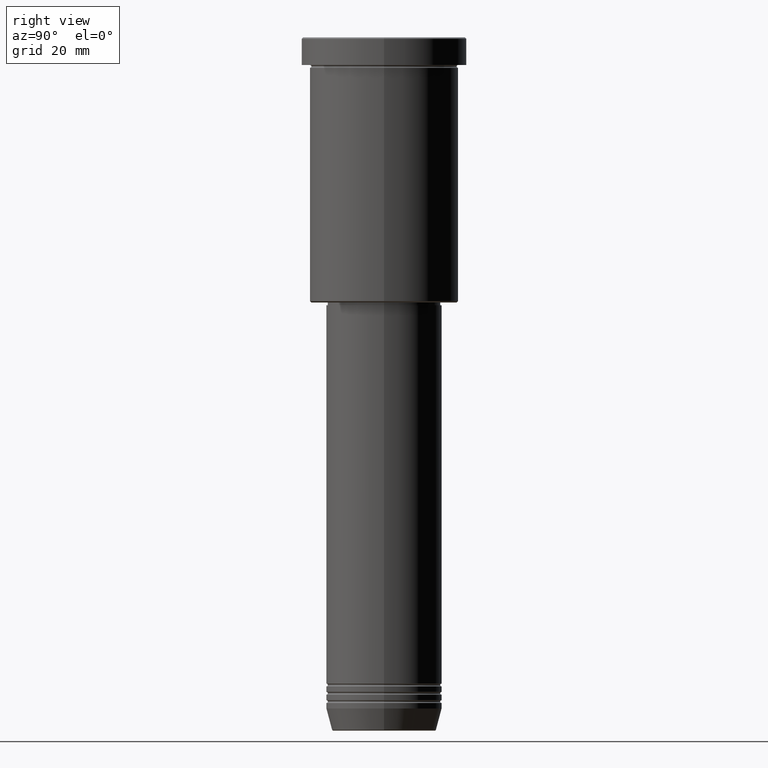
[diagram: clean part render]
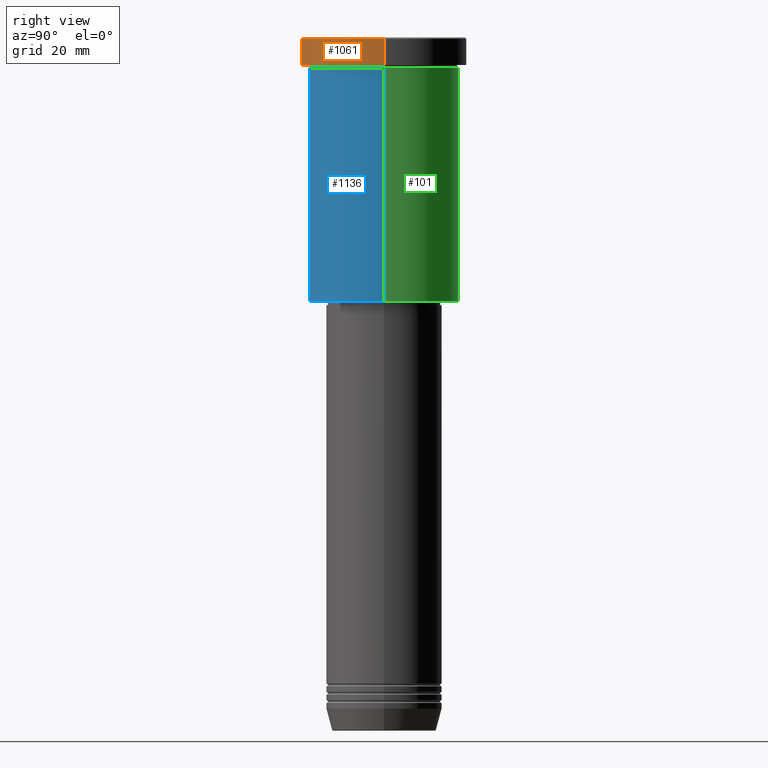
[diagram: same view with three faces highlighted in distinct colors, each labeled with its STEP entity id]
A machine part, right view with three faces highlighted in distinct colors.
Their STEP definitions:

[orange] entity #1061 — the highlighted cylindrical surface (partial cylindrical patch) has radius 30 mm, axis along (-0, -0, 1).
#10 = ORIENTED_EDGE ( 'NONE', *, *, #1024, .T. ) ;
#15 = DIRECTION ( 'NONE',  ( 1.000000000000000000, 0.000000000000000000, 0.000000000000000000 ) ) ;
#31 = AXIS2_PLACEMENT_3D ( 'NONE', #519, #958, #231 ) ;
#56 = CARTESIAN_POINT ( 'NONE',  ( -30.00000000000000000, 3.673940397442059178E-15, -9.999999999999992895 ) ) ;
#82 = CARTESIAN_POINT ( 'NONE',  ( 0.000000000000000000, 0.000000000000000000, -0.5000000000000073275 ) ) ;
#96 = DIRECTION ( 'NONE',  ( 1.000000000000000000, 0.000000000000000000, 0.000000000000000000 ) ) ;
#99 = DIRECTION ( 'NONE',  ( -0.000000000000000000, -0.000000000000000000, 1.000000000000000000 ) ) ;
#170 = LINE ( 'NONE', #255, #632 ) ;
#221 = AXIS2_PLACEMENT_3D ( 'NONE', #82, #934, #15 ) ;
#231 = DIRECTION ( 'NONE',  ( 1.000000000000000000, 0.000000000000000000, 0.000000000000000000 ) ) ;
#237 = VERTEX_POINT ( 'NONE', #1075 ) ;
#255 = CARTESIAN_POINT ( 'NONE',  ( 30.00000000000000000, 0.000000000000000000, 0.000000000000000000 ) ) ;
#261 = DIRECTION ( 'NONE',  ( -0.000000000000000000, -0.000000000000000000, 1.000000000000000000 ) ) ;
#298 = ORIENTED_EDGE ( 'NONE', *, *, #1177, .F. ) ;
#303 = CIRCLE ( 'NONE', #31, 30.00000000000000000 ) ;
#347 = AXIS2_PLACEMENT_3D ( 'NONE', #1095, #99, #96 ) ;
#396 = LINE ( 'NONE', #682, #977 ) ;
#504 = DIRECTION ( 'NONE',  ( -0.000000000000000000, -0.000000000000000000, 1.000000000000000000 ) ) ;
#519 = CARTESIAN_POINT ( 'NONE',  ( 0.000000000000000000, 0.000000000000000000, -9.999999999999992895 ) ) ;
#545 = EDGE_CURVE ( 'NONE', #771, #237, #170, .T. ) ;
#549 = ORIENTED_EDGE ( 'NONE', *, *, #545, .T. ) ;
#632 = VECTOR ( 'NONE', #261, 1000.000000000000000 ) ;
#682 = CARTESIAN_POINT ( 'NONE',  ( -30.00000000000000000, 3.673940397442059178E-15, 0.000000000000000000 ) ) ;
#720 = ORIENTED_EDGE ( 'NONE', *, *, #810, .T. ) ;
#771 = VERTEX_POINT ( 'NONE', #1134 ) ;
#780 = VERTEX_POINT ( 'NONE', #56 ) ;
#810 = EDGE_CURVE ( 'NONE', #780, #771, #303, .T. ) ;
#847 = CARTESIAN_POINT ( 'NONE',  ( -30.00000000000000000, 3.673940397442059178E-15, -0.5000000000000073275 ) ) ;
#934 = DIRECTION ( 'NONE',  ( 0.000000000000000000, 0.000000000000000000, -1.000000000000000000 ) ) ;
#958 = DIRECTION ( 'NONE',  ( -0.000000000000000000, -0.000000000000000000, 1.000000000000000000 ) ) ;
#977 = VECTOR ( 'NONE', #504, 1000.000000000000000 ) ;
#992 = CIRCLE ( 'NONE', #221, 30.00000000000000000 ) ;
#1024 = EDGE_CURVE ( 'NONE', #237, #1050, #992, .T. ) ;
#1050 = VERTEX_POINT ( 'NONE', #847 ) ;
#1058 = EDGE_LOOP ( 'NONE', ( #298, #720, #549, #10 ) ) ;
#1061 = ADVANCED_FACE ( 'NONE', ( #1113 ), #1105, .T. ) ;
#1075 = CARTESIAN_POINT ( 'NONE',  ( 30.00000000000000000, 0.000000000000000000, -0.5000000000000073275 ) ) ;
#1095 = CARTESIAN_POINT ( 'NONE',  ( 0.000000000000000000, 0.000000000000000000, 0.000000000000000000 ) ) ;
#1105 = CYLINDRICAL_SURFACE ( 'NONE', #347, 30.00000000000000000 ) ;
#1113 = FACE_OUTER_BOUND ( 'NONE', #1058, .T. ) ;
#1134 = CARTESIAN_POINT ( 'NONE',  ( 30.00000000000000000, 0.000000000000000000, -9.999999999999992895 ) ) ;
#1177 = EDGE_CURVE ( 'NONE', #780, #1050, #396, .T. ) ;

[blue] entity #1136 — the highlighted cylindrical surface (partial cylindrical patch) has radius 27 mm, axis along (-0, -0, 1).
#62 = DIRECTION ( 'NONE',  ( -0.000000000000000000, -0.000000000000000000, 1.000000000000000000 ) ) ;
#73 = AXIS2_PLACEMENT_3D ( 'NONE', #288, #572, #661 ) ;
#110 = LINE ( 'NONE', #685, #908 ) ;
#120 = EDGE_CURVE ( 'NONE', #505, #397, #110, .T. ) ;
#150 = ORIENTED_EDGE ( 'NONE', *, *, #120, .T. ) ;
#161 = CARTESIAN_POINT ( 'NONE',  ( 27.00000000000000355, 0.000000000000000000, -95.50000000000004263 ) ) ;
#162 = ORIENTED_EDGE ( 'NONE', *, *, #550, .F. ) ;
#272 = CARTESIAN_POINT ( 'NONE',  ( -27.00000000000000355, 3.306546357697854128E-15, -95.50000000000004263 ) ) ;
#288 = CARTESIAN_POINT ( 'NONE',  ( 0.000000000000000000, 0.000000000000000000, -95.50000000000004263 ) ) ;
#296 = DIRECTION ( 'NONE',  ( 1.000000000000000000, 0.000000000000000000, 0.000000000000000000 ) ) ;
#315 = VERTEX_POINT ( 'NONE', #709 ) ;
#333 = LINE ( 'NONE', #878, #512 ) ;
#377 = FACE_OUTER_BOUND ( 'NONE', #851, .T. ) ;
#397 = VERTEX_POINT ( 'NONE', #608 ) ;
#484 = VERTEX_POINT ( 'NONE', #272 ) ;
#505 = VERTEX_POINT ( 'NONE', #161 ) ;
#512 = VECTOR ( 'NONE', #62, 1000.000000000000000 ) ;
#535 = CIRCLE ( 'NONE', #698, 27.00000000000000355 ) ;
#550 = EDGE_CURVE ( 'NONE', #315, #397, #535, .T. ) ;
#556 = ORIENTED_EDGE ( 'NONE', *, *, #1093, .T. ) ;
#566 = ORIENTED_EDGE ( 'NONE', *, *, #844, .F. ) ;
#572 = DIRECTION ( 'NONE',  ( -0.000000000000000000, -0.000000000000000000, 1.000000000000000000 ) ) ;
#578 = DIRECTION ( 'NONE',  ( -0.000000000000000000, -0.000000000000000000, 1.000000000000000000 ) ) ;
#608 = CARTESIAN_POINT ( 'NONE',  ( 27.00000000000000355, 0.000000000000000000, -10.99999999999999289 ) ) ;
#626 = CARTESIAN_POINT ( 'NONE',  ( 0.000000000000000000, 0.000000000000000000, -10.99999999999999289 ) ) ;
#661 = DIRECTION ( 'NONE',  ( -1.000000000000000000, 0.000000000000000000, 0.000000000000000000 ) ) ;
#675 = AXIS2_PLACEMENT_3D ( 'NONE', #745, #1117, #296 ) ;
#685 = CARTESIAN_POINT ( 'NONE',  ( 27.00000000000000355, 0.000000000000000000, 0.000000000000000000 ) ) ;
#698 = AXIS2_PLACEMENT_3D ( 'NONE', #626, #739, #1174 ) ;
#709 = CARTESIAN_POINT ( 'NONE',  ( -27.00000000000000355, 3.306546357697854128E-15, -10.99999999999999289 ) ) ;
#732 = CIRCLE ( 'NONE', #73, 27.00000000000000355 ) ;
#739 = DIRECTION ( 'NONE',  ( -0.000000000000000000, -0.000000000000000000, 1.000000000000000000 ) ) ;
#745 = CARTESIAN_POINT ( 'NONE',  ( 0.000000000000000000, 0.000000000000000000, 0.000000000000000000 ) ) ;
#762 = CYLINDRICAL_SURFACE ( 'NONE', #675, 27.00000000000000355 ) ;
#844 = EDGE_CURVE ( 'NONE', #484, #315, #333, .T. ) ;
#851 = EDGE_LOOP ( 'NONE', ( #566, #556, #150, #162 ) ) ;
#878 = CARTESIAN_POINT ( 'NONE',  ( -27.00000000000000355, 3.306546357697854128E-15, 0.000000000000000000 ) ) ;
#908 = VECTOR ( 'NONE', #578, 1000.000000000000000 ) ;
#1093 = EDGE_CURVE ( 'NONE', #484, #505, #732, .T. ) ;
#1117 = DIRECTION ( 'NONE',  ( -0.000000000000000000, -0.000000000000000000, 1.000000000000000000 ) ) ;
#1136 = ADVANCED_FACE ( 'NONE', ( #377 ), #762, .T. ) ;
#1174 = DIRECTION ( 'NONE',  ( 1.000000000000000000, 0.000000000000000000, 0.000000000000000000 ) ) ;

[green] entity #101 — the highlighted cylindrical surface (partial cylindrical patch) has radius 27 mm, axis along (-0, -0, 1).
#23 = ORIENTED_EDGE ( 'NONE', *, *, #295, .T. ) ;
#62 = DIRECTION ( 'NONE',  ( -0.000000000000000000, -0.000000000000000000, 1.000000000000000000 ) ) ;
#69 = CARTESIAN_POINT ( 'NONE',  ( 0.000000000000000000, 0.000000000000000000, 0.000000000000000000 ) ) ;
#101 = ADVANCED_FACE ( 'NONE', ( #415 ), #715, .T. ) ;
#109 = AXIS2_PLACEMENT_3D ( 'NONE', #1156, #695, #342 ) ;
#110 = LINE ( 'NONE', #685, #908 ) ;
#120 = EDGE_CURVE ( 'NONE', #505, #397, #110, .T. ) ;
#161 = CARTESIAN_POINT ( 'NONE',  ( 27.00000000000000355, 0.000000000000000000, -95.50000000000004263 ) ) ;
#182 = ORIENTED_EDGE ( 'NONE', *, *, #120, .F. ) ;
#247 = EDGE_LOOP ( 'NONE', ( #23, #822, #757, #182 ) ) ;
#272 = CARTESIAN_POINT ( 'NONE',  ( -27.00000000000000355, 3.306546357697854128E-15, -95.50000000000004263 ) ) ;
#295 = EDGE_CURVE ( 'NONE', #505, #484, #516, .T. ) ;
#315 = VERTEX_POINT ( 'NONE', #709 ) ;
#331 = DIRECTION ( 'NONE',  ( -0.000000000000000000, -0.000000000000000000, 1.000000000000000000 ) ) ;
#333 = LINE ( 'NONE', #878, #512 ) ;
#342 = DIRECTION ( 'NONE',  ( 1.000000000000000000, 0.000000000000000000, 0.000000000000000000 ) ) ;
#392 = EDGE_CURVE ( 'NONE', #397, #315, #981, .T. ) ;
#397 = VERTEX_POINT ( 'NONE', #608 ) ;
#410 = DIRECTION ( 'NONE',  ( -0.000000000000000000, -0.000000000000000000, 1.000000000000000000 ) ) ;
#415 = FACE_OUTER_BOUND ( 'NONE', #247, .T. ) ;
#484 = VERTEX_POINT ( 'NONE', #272 ) ;
#505 = VERTEX_POINT ( 'NONE', #161 ) ;
#506 = CARTESIAN_POINT ( 'NONE',  ( 0.000000000000000000, 0.000000000000000000, -95.50000000000004263 ) ) ;
#512 = VECTOR ( 'NONE', #62, 1000.000000000000000 ) ;
#516 = CIRCLE ( 'NONE', #676, 27.00000000000000355 ) ;
#578 = DIRECTION ( 'NONE',  ( -0.000000000000000000, -0.000000000000000000, 1.000000000000000000 ) ) ;
#608 = CARTESIAN_POINT ( 'NONE',  ( 27.00000000000000355, 0.000000000000000000, -10.99999999999999289 ) ) ;
#676 = AXIS2_PLACEMENT_3D ( 'NONE', #506, #410, #978 ) ;
#685 = CARTESIAN_POINT ( 'NONE',  ( 27.00000000000000355, 0.000000000000000000, 0.000000000000000000 ) ) ;
#695 = DIRECTION ( 'NONE',  ( -0.000000000000000000, -0.000000000000000000, 1.000000000000000000 ) ) ;
#697 = AXIS2_PLACEMENT_3D ( 'NONE', #69, #331, #1057 ) ;
#709 = CARTESIAN_POINT ( 'NONE',  ( -27.00000000000000355, 3.306546357697854128E-15, -10.99999999999999289 ) ) ;
#715 = CYLINDRICAL_SURFACE ( 'NONE', #697, 27.00000000000000355 ) ;
#757 = ORIENTED_EDGE ( 'NONE', *, *, #392, .F. ) ;
#822 = ORIENTED_EDGE ( 'NONE', *, *, #844, .T. ) ;
#844 = EDGE_CURVE ( 'NONE', #484, #315, #333, .T. ) ;
#878 = CARTESIAN_POINT ( 'NONE',  ( -27.00000000000000355, 3.306546357697854128E-15, 0.000000000000000000 ) ) ;
#908 = VECTOR ( 'NONE', #578, 1000.000000000000000 ) ;
#978 = DIRECTION ( 'NONE',  ( -1.000000000000000000, 0.000000000000000000, 0.000000000000000000 ) ) ;
#981 = CIRCLE ( 'NONE', #109, 27.00000000000000355 ) ;
#1057 = DIRECTION ( 'NONE',  ( 1.000000000000000000, 0.000000000000000000, 0.000000000000000000 ) ) ;
#1156 = CARTESIAN_POINT ( 'NONE',  ( 0.000000000000000000, 0.000000000000000000, -10.99999999999999289 ) ) ;